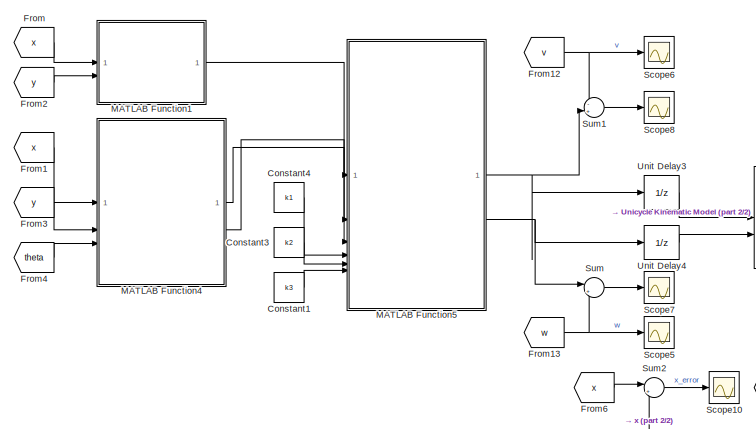
[diagram: root canvas - part 1/2, left side, full height]
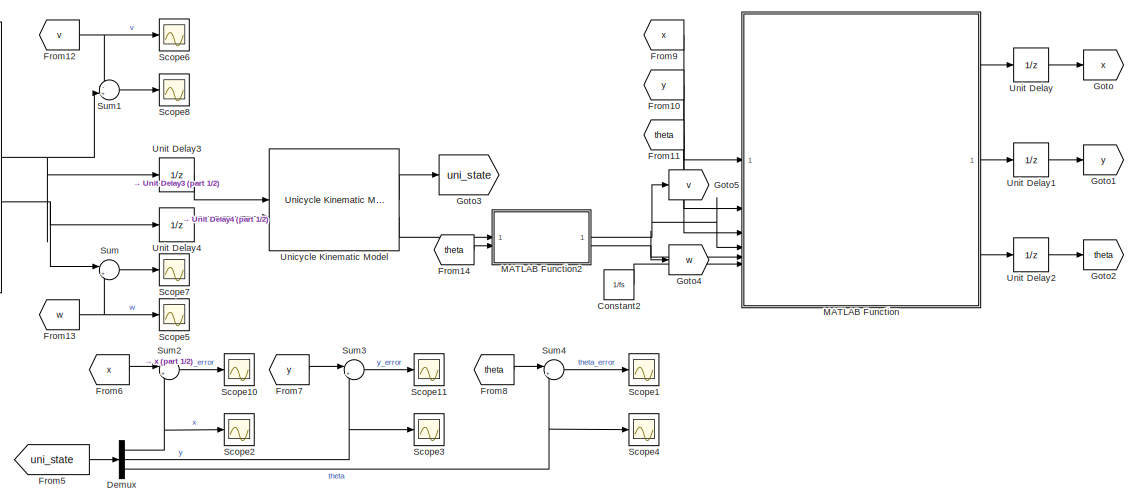
[diagram: root canvas - part 2/2, center side, full height]
MODEL slx_dbec8e74ac85
KIND model
CONFIG AbsTol = auto
CONFIG EnableMultiTasking = off
CONFIG FixedStep = 1/fs
CONFIG MaxStep = auto
CONFIG MinStep = auto
CONFIG RelTol = 1e-3
CONFIG SampleTimeConstraint = Unconstrained
CONFIG SolverName = FixedStepAuto
CONFIG StartTime = 0.0
CONFIG StopTime = 20
BLOCK [Constant] Constant1
  Value = k3
BLOCK [Constant] Constant2
  Value = 1/fs
BLOCK [Constant] Constant3
  Value = k2
BLOCK [Constant] Constant4
  Value = k1
BLOCK [Demux] Demux
  Outputs = 3
BLOCK [From] From
  GotoTag = x
BLOCK [From] From1
  GotoTag = x
BLOCK [From] From10
  GotoTag = y
BLOCK [From] From11
  GotoTag = theta
BLOCK [From] From12
  GotoTag = v
BLOCK [From] From13
  GotoTag = w
BLOCK [From] From14
  GotoTag = theta
BLOCK [From] From2
  GotoTag = y
BLOCK [From] From3
  GotoTag = y
BLOCK [From] From4
  GotoTag = theta
BLOCK [From] From5
  GotoTag = uni_state
BLOCK [From] From6
  GotoTag = x
BLOCK [From] From7
  GotoTag = y
BLOCK [From] From8
  GotoTag = theta
BLOCK [From] From9
  GotoTag = x
BLOCK [Goto] Goto
  GotoTag = x
BLOCK [Goto] Goto1
  GotoTag = y
BLOCK [Goto] Goto2
  GotoTag = theta
BLOCK [Goto] Goto3
  GotoTag = uni_state
BLOCK [Goto] Goto4
  GotoTag = w
BLOCK [Goto] Goto5
  GotoTag = v
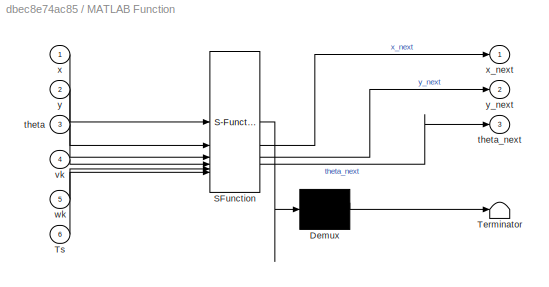
BLOCK [SubSystem] MATLAB Function
  ErrorFcn = Stateflow.Translate.translate
  PermitHierarchicalResolution = ExplicitOnly
  SFBlockType = MATLAB Function
  Tag = inte
  TreatAsAtomicUnit = on
BLOCK [Demux] MATLAB Function/ Demux 
  Outputs = 1
BLOCK [S-Function] MATLAB Function/ SFunction 
  EnableBusSupport = on
  FunctionName = sf_sfun
  PortCounts = [6 4]
  SFcnIsStateOwnerBlock = off
  SFunctionDeploymentMode = off
  Tag = Stateflow S-Function 2
BLOCK [Terminator] MATLAB Function/ Terminator 
BLOCK [Inport] MATLAB Function/Ts
  Port = 6
BLOCK [Inport] MATLAB Function/theta
  Port = 3
BLOCK [Outport] MATLAB Function/theta_next
  Port = 3
BLOCK [Inport] MATLAB Function/vk
  Port = 4
BLOCK [Inport] MATLAB Function/wk
  Port = 5
BLOCK [Inport] MATLAB Function/x
BLOCK [Outport] MATLAB Function/x_next
BLOCK [Inport] MATLAB Function/y
  Port = 2
BLOCK [Outport] MATLAB Function/y_next
  Port = 2
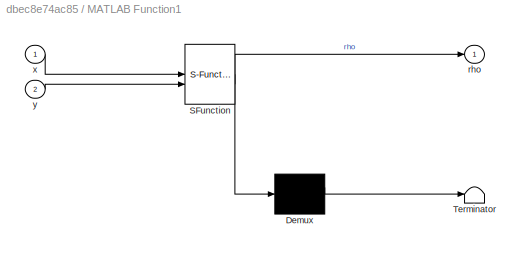
BLOCK [SubSystem] MATLAB Function1
  ErrorFcn = Stateflow.Translate.translate
  PermitHierarchicalResolution = ExplicitOnly
  SFBlockType = MATLAB Function
  TreatAsAtomicUnit = on
BLOCK [Demux] MATLAB Function1/ Demux 
  Outputs = 1
BLOCK [S-Function] MATLAB Function1/ SFunction 
  EnableBusSupport = on
  FunctionName = sf_sfun
  PortCounts = [2 2]
  SFcnIsStateOwnerBlock = off
  SFunctionDeploymentMode = off
  Tag = Stateflow S-Function 1
BLOCK [Terminator] MATLAB Function1/ Terminator 
BLOCK [Outport] MATLAB Function1/rho
BLOCK [Inport] MATLAB Function1/x
BLOCK [Inport] MATLAB Function1/y
  Port = 2
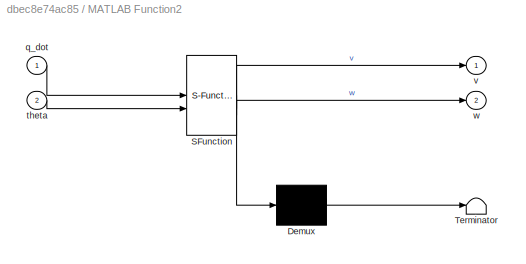
BLOCK [SubSystem] MATLAB Function2
  ErrorFcn = Stateflow.Translate.translate
  PermitHierarchicalResolution = ExplicitOnly
  SFBlockType = MATLAB Function
  TreatAsAtomicUnit = on
BLOCK [Demux] MATLAB Function2/ Demux 
  Outputs = 1
BLOCK [S-Function] MATLAB Function2/ SFunction 
  EnableBusSupport = on
  FunctionName = sf_sfun
  PortCounts = [2 3]
  SFcnIsStateOwnerBlock = off
  SFunctionDeploymentMode = off
  Tag = Stateflow S-Function 3
BLOCK [Terminator] MATLAB Function2/ Terminator 
BLOCK [Inport] MATLAB Function2/q_dot
BLOCK [Inport] MATLAB Function2/theta
  Port = 2
BLOCK [Outport] MATLAB Function2/v
BLOCK [Outport] MATLAB Function2/w
  Port = 2
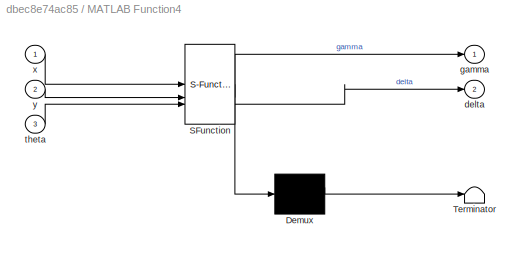
BLOCK [SubSystem] MATLAB Function4
  ErrorFcn = Stateflow.Translate.translate
  PermitHierarchicalResolution = ExplicitOnly
  SFBlockType = MATLAB Function
  TreatAsAtomicUnit = on
BLOCK [Demux] MATLAB Function4/ Demux 
  Outputs = 1
BLOCK [S-Function] MATLAB Function4/ SFunction 
  EnableBusSupport = on
  FunctionName = sf_sfun
  PortCounts = [3 3]
  SFcnIsStateOwnerBlock = off
  SFunctionDeploymentMode = off
  Tag = Stateflow S-Function 5
BLOCK [Terminator] MATLAB Function4/ Terminator 
BLOCK [Outport] MATLAB Function4/delta
  Port = 2
BLOCK [Outport] MATLAB Function4/gamma
BLOCK [Inport] MATLAB Function4/theta
  Port = 3
BLOCK [Inport] MATLAB Function4/x
BLOCK [Inport] MATLAB Function4/y
  Port = 2
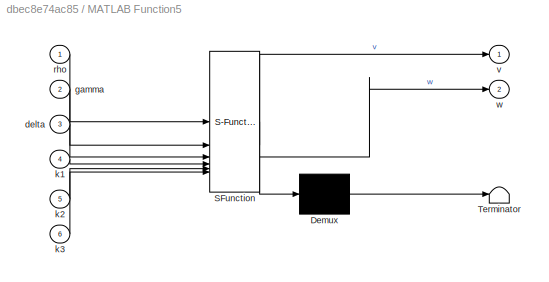
BLOCK [SubSystem] MATLAB Function5
  ErrorFcn = Stateflow.Translate.translate
  PermitHierarchicalResolution = ExplicitOnly
  SFBlockType = MATLAB Function
  TreatAsAtomicUnit = on
BLOCK [Demux] MATLAB Function5/ Demux 
  Outputs = 1
BLOCK [S-Function] MATLAB Function5/ SFunction 
  EnableBusSupport = on
  FunctionName = sf_sfun
  PortCounts = [6 3]
  SFcnIsStateOwnerBlock = off
  SFunctionDeploymentMode = off
  Tag = Stateflow S-Function 6
BLOCK [Terminator] MATLAB Function5/ Terminator 
BLOCK [Inport] MATLAB Function5/delta
  Port = 3
BLOCK [Inport] MATLAB Function5/gamma
  Port = 2
BLOCK [Inport] MATLAB Function5/k1
  Port = 4
BLOCK [Inport] MATLAB Function5/k2
  Port = 5
BLOCK [Inport] MATLAB Function5/k3
  Port = 6
BLOCK [Inport] MATLAB Function5/rho
BLOCK [Outport] MATLAB Function5/v
BLOCK [Outport] MATLAB Function5/w
  Port = 2
BLOCK [Scope] Scope1
  Floating = off
  NumInputPorts = 1
  ScopeSpecificationString = Simulink.scopes.TimeScopeBlockCfg('CurrentConfiguration', extmgr.ConfigurationSet(extmgr.Configuration('Core','General UI',true),extmgr.Configuration('Core','Source UI',true),extmgr.Configuration('Sources','WiredSimulink',true,'DataLoggingVariableName','ScopeData1'),extmgr.Configuration('Visuals','Time Domain',true,'SerializedDisplays',{struct('MinYLimReal','-0.0000000000000006','MaxYLimReal','0.0...<+1482ch>
BLOCK [Scope] Scope10
  Floating = off
  NumInputPorts = 1
  ScopeSpecificationString = Simulink.scopes.TimeScopeBlockCfg('CurrentConfiguration', extmgr.ConfigurationSet(extmgr.Configuration('Core','General UI',true),extmgr.Configuration('Core','Source UI',true),extmgr.Configuration('Sources','WiredSimulink',true,'DataLoggingVariableName','ScopeData3'),extmgr.Configuration('Visuals','Time Domain',true,'SerializedDisplays',{struct('MinYLimReal','-0.00013','MaxYLimReal','0.00001','YLab...<+1418ch>
BLOCK [Scope] Scope11
  Floating = off
  NumInputPorts = 1
  ScopeSpecificationString = Simulink.scopes.TimeScopeBlockCfg('CurrentConfiguration', extmgr.ConfigurationSet(extmgr.Configuration('Core','General UI',true),extmgr.Configuration('Core','Source UI',true),extmgr.Configuration('Sources','WiredSimulink',true,'DataLoggingVariableName','ScopeData4'),extmgr.Configuration('Visuals','Time Domain',true,'SerializedDisplays',{struct('MinYLimReal','-0.00017','MaxYLimReal','0.00002','YLab...<+1418ch>
BLOCK [Scope] Scope2
  Floating = off
  NumInputPorts = 1
  ScopeSpecificationString = Simulink.scopes.TimeScopeBlockCfg('CurrentConfiguration', extmgr.ConfigurationSet(extmgr.Configuration('Core','General UI',true),extmgr.Configuration('Core','Source UI',true),extmgr.Configuration('Sources','WiredSimulink',true,'DataLoggingVariableName','ScopeData2'),extmgr.Configuration('Visuals','Time Domain',true,'SerializedDisplays',{struct('MinYLimReal','-0.14678','MaxYLimReal','1.12742','YLab...<+1421ch>
BLOCK [Scope] Scope3
  Floating = off
  NumInputPorts = 1
  ScopeSpecificationString = Simulink.scopes.TimeScopeBlockCfg('CurrentConfiguration', extmgr.ConfigurationSet(extmgr.Configuration('Core','General UI',true),extmgr.Configuration('Core','Source UI',true),extmgr.Configuration('Sources','WiredSimulink',true,'DataLoggingVariableName','ScopeData3'),extmgr.Configuration('Visuals','Time Domain',true,'SerializedDisplays',{struct('MinYLimReal','-0.37809','MaxYLimReal','1.15312','YLab...<+1440ch>
BLOCK [Scope] Scope4
  Floating = off
  NumInputPorts = 1
  ScopeSpecificationString = Simulink.scopes.TimeScopeBlockCfg('CurrentConfiguration', extmgr.ConfigurationSet(extmgr.Configuration('Core','General UI',true),extmgr.Configuration('Core','Source UI',true),extmgr.Configuration('Sources','WiredSimulink',true,'DataLoggingVariableName','ScopeData4'),extmgr.Configuration('Visuals','Time Domain',true,'SerializedDisplays',{struct('MinYLimReal','-1.00055','MaxYLimReal','3.96964','YLab...<+1421ch>
BLOCK [Scope] Scope5
  Floating = off
  NumInputPorts = 1
  ScopeSpecificationString = Simulink.scopes.TimeScopeBlockCfg('CurrentConfiguration', extmgr.ConfigurationSet(extmgr.Configuration('Core','General UI',true),extmgr.Configuration('Core','Source UI',true),extmgr.Configuration('Sources','WiredSimulink',true,'DataLoggingVariableName','ScopeData1'),extmgr.Configuration('Visuals','Time Domain',true,'SerializedDisplays',{struct('MinYLimReal','-22.10424','MaxYLimReal','48.14173','YL...<+1442ch>
BLOCK [Scope] Scope6
  Floating = off
  NumInputPorts = 1
  ScopeSpecificationString = Simulink.scopes.TimeScopeBlockCfg('CurrentConfiguration', extmgr.ConfigurationSet(extmgr.Configuration('Core','General UI',true),extmgr.Configuration('Core','Source UI',true),extmgr.Configuration('Sources','WiredSimulink',true,'DataLoggingVariableName','ScopeData2'),extmgr.Configuration('Visuals','Time Domain',true,'SerializedDisplays',{struct('MinYLimReal','-7.97658','MaxYLimReal','1.07851','YLab...<+1417ch>
BLOCK [Scope] Scope7
  Floating = off
  NumInputPorts = 1
  ScopeSpecificationString = Simulink.scopes.TimeScopeBlockCfg('CurrentConfiguration', extmgr.ConfigurationSet(extmgr.Configuration('Core','General UI',true),extmgr.Configuration('Core','Source UI',true),extmgr.Configuration('Sources','WiredSimulink',true,'DataLoggingVariableName','ScopeData1'),extmgr.Configuration('Visuals','Time Domain',true,'SerializedDisplays',{struct('MinYLimReal','-3.86636','MaxYLimReal','12.46267','YLa...<+1440ch>
BLOCK [Scope] Scope8
  Floating = off
  NumInputPorts = 1
  ScopeSpecificationString = Simulink.scopes.TimeScopeBlockCfg('CurrentConfiguration', extmgr.ConfigurationSet(extmgr.Configuration('Core','General UI',true),extmgr.Configuration('Core','Source UI',true),extmgr.Configuration('Sources','WiredSimulink',true,'DataLoggingVariableName','ScopeData2'),extmgr.Configuration('Visuals','Time Domain',true,'SerializedDisplays',{struct('MinYLimReal','-8.0303','MaxYLimReal','1.56205','YLabe...<+1414ch>
BLOCK [Sum] Sum
  Inputs = |+-
BLOCK [Sum] Sum1
  Inputs = -+|
BLOCK [Sum] Sum2
  Inputs = |+-
BLOCK [Sum] Sum3
  Inputs = |+-
BLOCK [Sum] Sum4
  Inputs = |+-
BLOCK [Reference] Unicycle Kinematic Model  REF=robotmobilelib/Unicycle Kinematic Model
  SourceBlock = robotmobilelib/Unicycle Kinematic Model
  SourceType = Unicycle Kinematic Model
BLOCK [UnitDelay] Unit Delay
  HasFrameUpgradeWarning = on
  InitialCondition = qi(1)
  SampleTime = -1
BLOCK [UnitDelay] Unit Delay1
  HasFrameUpgradeWarning = on
  InitialCondition = qi(2)
  SampleTime = -1
BLOCK [UnitDelay] Unit Delay2
  HasFrameUpgradeWarning = on
  InitialCondition = qi(3)
  SampleTime = -1
BLOCK [UnitDelay] Unit Delay3
  HasFrameUpgradeWarning = on
  SampleTime = -1
BLOCK [UnitDelay] Unit Delay4
  HasFrameUpgradeWarning = on
  SampleTime = -1
LINE Constant1:1 -> MATLAB Function5:6
LINE Constant2:1 -> MATLAB Function:6
LINE Constant3:1 -> MATLAB Function5:5
LINE Constant4:1 -> MATLAB Function5:4
NET Demux:1 -> Scope2:1, Sum2:2
NET Demux:2 -> Scope3:1, Sum3:2
NET Demux:3 -> Scope4:1, Sum4:2
LINE From10:1 -> MATLAB Function:2
LINE From11:1 -> MATLAB Function:3
NET From12:1 -> Scope6:1, Sum1:1
NET From13:1 -> Scope5:1, Sum:2
LINE From14:1 -> MATLAB Function2:2
LINE From1:1 -> MATLAB Function4:1
LINE From2:1 -> MATLAB Function1:2
LINE From3:1 -> MATLAB Function4:2
LINE From4:1 -> MATLAB Function4:3
LINE From5:1 -> Demux:1
LINE From6:1 -> Sum2:1
LINE From7:1 -> Sum3:1
LINE From8:1 -> Sum4:1
LINE From9:1 -> MATLAB Function:1
LINE From:1 -> MATLAB Function1:1
LINE MATLAB Function1:1 -> MATLAB Function5:1
NET MATLAB Function2:1 -> Goto5:1, MATLAB Function:4
NET MATLAB Function2:2 -> Goto4:1, MATLAB Function:5
LINE MATLAB Function4:1 -> MATLAB Function5:2
LINE MATLAB Function4:2 -> MATLAB Function5:3
NET MATLAB Function5:1 -> Sum1:2, Unit Delay3:1
NET MATLAB Function5:2 -> Sum:1, Unit Delay4:1
LINE MATLAB Function:1 -> Unit Delay:1
LINE MATLAB Function:2 -> Unit Delay1:1
LINE MATLAB Function:3 -> Unit Delay2:1
LINE Sum1:1 -> Scope8:1
LINE Sum2:1 -> Scope10:1
LINE Sum3:1 -> Scope11:1
LINE Sum4:1 -> Scope1:1
LINE Sum:1 -> Scope7:1
LINE Unicycle Kinematic Model:1 -> Goto3:1
LINE Unicycle Kinematic Model:2 -> MATLAB Function2:1
LINE Unit Delay1:1 -> Goto1:1
LINE Unit Delay2:1 -> Goto2:1
LINE Unit Delay3:1 -> Unicycle Kinematic Model:1
LINE Unit Delay4:1 -> Unicycle Kinematic Model:2
LINE Unit Delay:1 -> Goto:1
note: NET lines group one-source signal fan-out (src -> all destinations, sorted); 1:1 wires keep LINE
CHART MATLAB Function1 states=1 transitions=1
  STATE_LABEL 'eML_blk_kernel()'
  STATE_LABEL 'SCRIPT:\nfunction rho = rho(x,y)\nrho = sqrt(x^2 + y^2);\n'
CHART MATLAB Function states=1 transitions=1
  STATE_LABEL 'eML_blk_kernel()'
  STATE_LABEL 'SCRIPT:\nfunction [x_next,y_next,theta_next] = Ruge_kutta(x,y,theta,vk,wk,Ts)\nx_next = x +vk*Ts*cos(theta+wk*Ts/2);\ny_next = y +vk*Ts*sin(theta+wk*Ts/2);\ntheta_next = theta + wk*Ts;\n'
CHART MATLAB Function2 states=1 transitions=1
  STATE_LABEL 'eML_blk_kernel()'
  STATE_LABEL 'SCRIPT:\nfunction [v,w] = fcn(q_dot,theta)\nv= q_dot(1)/cos(theta);\nw= q_dot(3);'
CHART MATLAB Function4 states=1 transitions=1
  STATE_LABEL 'eML_blk_kernel()'
  STATE_LABEL 'SCRIPT:\nfunction [gamma,delta] = gamma_delta(x,y,theta)\ngamma = atan2(y,x) - theta + pi;\ndelta = atan2(y,x) + pi;'
CHART MATLAB Function5 states=1 transitions=1
  STATE_LABEL 'eML_blk_kernel()'
  STATE_LABEL 'SCRIPT:\nfunction [v,w] = Posture_regulation(rho,gamma,delta,k1,k2,k3)\nv=k1*rho*cos(gamma);\nw=k2*gamma+k1*sin(gamma)*cos(gamma)*(1+k3*delta/gamma);\n\n'
CHART  states=0 transitions=0
CHART  states=0 transitions=0
CHART  states=0 transitions=0
CHART  states=0 transitions=0
CHART  states=0 transitions=0
